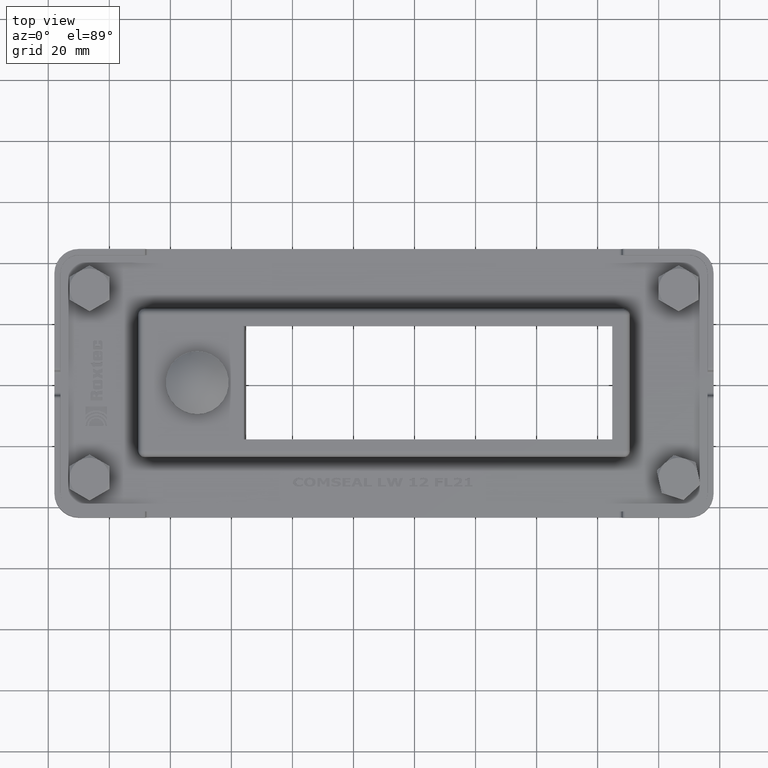
[diagram: clean part render]
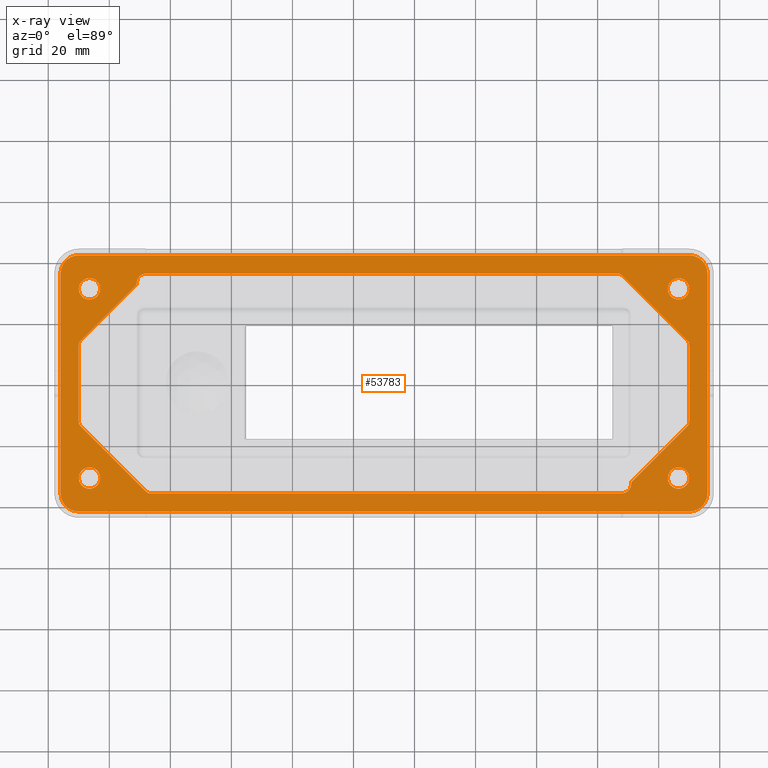
[diagram: x-ray — body ghosted, one internal face saturated and labeled with its STEP entity id]
A machine part, top view, then the same camera in x-ray: the body is ghosted and one INTERNAL B-rep face — a face not visible from any outside direction — is saturated and labeled: STEP entity #53783.
In plain terms, the highlighted planar face has unit normal (-0, -0, 1).
Its self-contained STEP definition (entity closure, byte-faithful):
#52681=CARTESIAN_POINT('',(76.236544032709489,35.292893218813134,4.0));
#52682=VERTEX_POINT('',#52681);
#52683=CARTESIAN_POINT('',(77.650757595082453,34.707106781186269,4.0));
#52684=VERTEX_POINT('',#52683);
#52685=CARTESIAN_POINT('',(76.236544032709489,33.292893218813298,4.0));
#52686=DIRECTION('',(0.0,0.0,-1.0));
#52687=DIRECTION('',(0.707106781186547,0.707106781186547,0.0));
#52688=AXIS2_PLACEMENT_3D('',#52685,#52686,#52687);
#52689=CIRCLE('',#52688,1.999999999999833);
#52690=EDGE_CURVE('',#52682,#52684,#52689,.T.);
#52723=CARTESIAN_POINT('',(99.121320343561052,13.236544032707691,4.0));
#52724=VERTEX_POINT('',#52723);
#52725=CARTESIAN_POINT('',(77.650757595082453,34.707106781186262,4.0));
#52726=DIRECTION('',(0.707106781186548,-0.707106781186547,0.0));
#52727=VECTOR('',#52726,30.363961030680976);
#52728=LINE('',#52725,#52727);
#52729=EDGE_CURVE('',#52684,#52724,#52728,.T.);
#52754=CARTESIAN_POINT('',(99.707106781186525,11.822330470338034,4.0));
#52755=VERTEX_POINT('',#52754);
#52756=CARTESIAN_POINT('',(97.707106781191385,11.822330470338034,4.0));
#52757=DIRECTION('',(0.0,0.0,-1.0));
#52758=DIRECTION('',(1.0,0.0,0.0));
#52759=AXIS2_PLACEMENT_3D('',#52756,#52757,#52758);
#52760=CIRCLE('',#52759,1.999999999995153);
#52761=EDGE_CURVE('',#52724,#52755,#52760,.T.);
#52787=CARTESIAN_POINT('',(99.707106781186567,-13.236544032709482,4.0));
#52788=VERTEX_POINT('',#52787);
#52789=CARTESIAN_POINT('',(99.707106781186511,11.822330470338034,4.0));
#52790=DIRECTION('',(0.0,-1.0,0.0));
#52791=VECTOR('',#52790,25.058874503047516);
#52792=LINE('',#52789,#52791);
#52793=EDGE_CURVE('',#52755,#52788,#52792,.T.);
#52818=CARTESIAN_POINT('',(99.121320343559717,-14.650757595082435,4.0));
#52819=VERTEX_POINT('',#52818);
#52820=CARTESIAN_POINT('',(97.707106781186724,-13.236544032709482,4.0));
#52821=DIRECTION('',(0.0,0.0,-1.0));
#52822=DIRECTION('',(0.70710678118656,-0.707106781186535,0.0));
#52823=AXIS2_PLACEMENT_3D('',#52820,#52821,#52822);
#52824=CIRCLE('',#52823,1.999999999999833);
#52825=EDGE_CURVE('',#52788,#52819,#52824,.T.);
#52851=CARTESIAN_POINT('',(81.000000000000014,-32.772077938642724,4.0));
#52852=VERTEX_POINT('',#52851);
#52853=CARTESIAN_POINT('',(99.121320343559731,-14.650757595082442,4.0));
#52854=DIRECTION('',(-0.707106781186536,-0.707106781186559,0.0));
#52855=VECTOR('',#52854,25.627416997970034);
#52856=LINE('',#52853,#52855);
#52857=EDGE_CURVE('',#52819,#52852,#52856,.T.);
#52882=CARTESIAN_POINT('',(80.707106781186582,-33.479184719829277,4.0));
#52883=VERTEX_POINT('',#52882);
#52884=CARTESIAN_POINT('',(81.707106781186582,-33.479184719829277,4.0));
#52885=DIRECTION('',(0.0,0.0,1.0));
#52886=DIRECTION('',(0.707106781186554,-0.707106781186541,0.0));
#52887=AXIS2_PLACEMENT_3D('',#52884,#52885,#52886);
#52888=CIRCLE('',#52887,1.0);
#52889=EDGE_CURVE('',#52852,#52883,#52888,.T.);
#52915=CARTESIAN_POINT('',(80.707106781186582,-33.607106781186879,4.0));
#52916=VERTEX_POINT('',#52915);
#52917=CARTESIAN_POINT('',(80.707106781186582,-33.479184719829277,4.0));
#52918=DIRECTION('',(0.0,-1.0,0.0));
#52919=VECTOR('',#52918,0.127922061357609);
#52920=LINE('',#52917,#52919);
#52921=EDGE_CURVE('',#52883,#52916,#52920,.T.);
#52946=CARTESIAN_POINT('',(77.607106781186573,-36.70710678118688,4.0));
#52947=VERTEX_POINT('',#52946);
#52948=CARTESIAN_POINT('',(77.607106781186573,-33.607106781186879,4.0));
#52949=DIRECTION('',(0.0,0.0,-1.0));
#52950=DIRECTION('',(0.0,-1.0,0.0));
#52951=AXIS2_PLACEMENT_3D('',#52948,#52949,#52950);
#52952=CIRCLE('',#52951,3.100000000000001);
#52953=EDGE_CURVE('',#52916,#52947,#52952,.T.);
#52979=CARTESIAN_POINT('',(-76.822330470336425,-36.707106781186923,4.0));
#52980=VERTEX_POINT('',#52979);
#52981=CARTESIAN_POINT('',(77.607106781186587,-36.70710678118688,4.0));
#52982=DIRECTION('',(-1.0,0.0,0.0));
#52983=VECTOR('',#52982,154.42943725152301);
#52984=LINE('',#52981,#52983);
#52985=EDGE_CURVE('',#52947,#52980,#52984,.T.);
#53010=CARTESIAN_POINT('',(-78.236544032709418,-36.121320343560065,4.0));
#53011=VERTEX_POINT('',#53010);
#53012=CARTESIAN_POINT('',(-76.822330470336425,-34.707106781187079,4.0));
#53013=DIRECTION('',(0.0,0.0,-1.0));
#53014=DIRECTION('',(-0.70710678118655,-0.707106781186545,0.0));
#53015=AXIS2_PLACEMENT_3D('',#53012,#53013,#53014);
#53016=CIRCLE('',#53015,1.999999999999833);
#53017=EDGE_CURVE('',#52980,#53011,#53016,.T.);
#53043=CARTESIAN_POINT('',(-99.70710678118661,-14.650757595082759,4.0));
#53044=VERTEX_POINT('',#53043);
#53045=CARTESIAN_POINT('',(-78.236544032709432,-36.121320343560072,4.0));
#53046=DIRECTION('',(-0.707106781186546,0.707106781186549,0.0));
#53047=VECTOR('',#53046,30.363961030679082);
#53048=LINE('',#53045,#53047);
#53049=EDGE_CURVE('',#53011,#53044,#53048,.T.);
#53074=CARTESIAN_POINT('',(-100.29289321881345,-13.236544032709785,4.0));
#53075=VERTEX_POINT('',#53074);
#53076=CARTESIAN_POINT('',(-98.292893218813617,-13.236544032709785,4.0));
#53077=DIRECTION('',(0.0,0.0,-1.0));
#53078=DIRECTION('',(-1.0,0.0,0.0));
#53079=AXIS2_PLACEMENT_3D('',#53076,#53077,#53078);
#53080=CIRCLE('',#53079,1.999999999999833);
#53081=EDGE_CURVE('',#53044,#53075,#53080,.T.);
#53107=CARTESIAN_POINT('',(-100.29289321881345,11.822330470335965,4.0));
#53108=VERTEX_POINT('',#53107);
#53109=CARTESIAN_POINT('',(-100.29289321881345,-13.236544032709785,4.0));
#53110=DIRECTION('',(0.0,1.0,0.0));
#53111=VECTOR('',#53110,25.05887450304575);
#53112=LINE('',#53109,#53111);
#53113=EDGE_CURVE('',#53075,#53108,#53112,.T.);
#53138=CARTESIAN_POINT('',(-99.707106781186582,13.236544032708931,4.0));
#53139=VERTEX_POINT('',#53138);
#53140=CARTESIAN_POINT('',(-98.292893218813617,11.822330470335965,4.0));
#53141=DIRECTION('',(0.0,0.0,-1.0));
#53142=DIRECTION('',(-0.707106781186548,0.707106781186547,0.0));
#53143=AXIS2_PLACEMENT_3D('',#53140,#53141,#53142);
#53144=CIRCLE('',#53143,1.999999999999833);
#53145=EDGE_CURVE('',#53108,#53139,#53144,.T.);
#53171=CARTESIAN_POINT('',(-81.585786437626894,31.357864376268729,4.0));
#53172=VERTEX_POINT('',#53171);
#53173=CARTESIAN_POINT('',(-99.707106781186582,13.236544032708924,4.0));
#53174=DIRECTION('',(0.707106781186545,0.70710678118655,0.0));
#53175=VECTOR('',#53174,25.627416997969668);
#53176=LINE('',#53173,#53175);
#53177=EDGE_CURVE('',#53139,#53172,#53176,.T.);
#53202=CARTESIAN_POINT('',(-81.292893218813447,32.064971157455268,4.0));
#53203=VERTEX_POINT('',#53202);
#53204=CARTESIAN_POINT('',(-82.292893218813447,32.064971157455268,4.0));
#53205=DIRECTION('',(0.0,0.0,1.0));
#53206=DIRECTION('',(-0.70710678118655,0.707106781186545,0.0));
#53207=AXIS2_PLACEMENT_3D('',#53204,#53205,#53206);
#53208=CIRCLE('',#53207,1.0);
#53209=EDGE_CURVE('',#53172,#53203,#53208,.T.);
#53235=CARTESIAN_POINT('',(-81.292893218813433,32.192893218813516,4.0));
#53236=VERTEX_POINT('',#53235);
#53237=CARTESIAN_POINT('',(-81.292893218813447,32.064971157455275,4.0));
#53238=DIRECTION('',(1.110899E-013,1.0,0.0));
#53239=VECTOR('',#53238,0.127922061358241);
#53240=LINE('',#53237,#53239);
#53241=EDGE_CURVE('',#53203,#53236,#53240,.T.);
#53266=CARTESIAN_POINT('',(-78.192893218813452,35.292893218813084,4.0));
#53267=VERTEX_POINT('',#53266);
#53268=CARTESIAN_POINT('',(-78.192893218813438,32.192893218813097,4.0));
#53269=DIRECTION('',(0.0,0.0,-1.0));
#53270=DIRECTION('',(0.0,1.0,0.0));
#53271=AXIS2_PLACEMENT_3D('',#53268,#53269,#53270);
#53272=CIRCLE('',#53271,3.099999999999992);
#53273=EDGE_CURVE('',#53236,#53267,#53272,.T.);
#53299=CARTESIAN_POINT('',(-78.192893218813452,35.292893218813077,4.0));
#53300=DIRECTION('',(1.0,0.0,0.0));
#53301=VECTOR('',#53300,154.42943725152293);
#53302=LINE('',#53299,#53301);
#53303=EDGE_CURVE('',#53267,#52682,#53302,.T.);
#53321=CARTESIAN_POINT('',(-93.292893218835331,-31.707106781186909,4.0));
#53322=VERTEX_POINT('',#53321);
#53323=CARTESIAN_POINT('',(-96.792893218835317,-31.707106781186909,4.0));
#53324=DIRECTION('',(0.0,0.0,-1.0));
#53325=DIRECTION('',(-1.0,0.0,0.0));
#53326=AXIS2_PLACEMENT_3D('',#53323,#53324,#53325);
#53327=CIRCLE('',#53326,3.5);
#53328=EDGE_CURVE('',#53322,#53322,#53327,.T.);
#53349=CARTESIAN_POINT('',(-93.292893218814271,30.292893218813095,4.0));
#53350=VERTEX_POINT('',#53349);
#53351=CARTESIAN_POINT('',(-96.792893218814271,30.292893218813095,4.0));
#53352=DIRECTION('',(0.0,0.0,-1.0));
#53353=DIRECTION('',(-1.0,0.0,0.0));
#53354=AXIS2_PLACEMENT_3D('',#53351,#53352,#53353);
#53355=CIRCLE('',#53354,3.5);
#53356=EDGE_CURVE('',#53350,#53350,#53355,.T.);
#53377=CARTESIAN_POINT('',(99.707106781186553,-31.707106781186884,4.0));
#53378=VERTEX_POINT('',#53377);
#53379=CARTESIAN_POINT('',(96.207106781186553,-31.707106781186884,4.0));
#53380=DIRECTION('',(0.0,0.0,-1.0));
#53381=DIRECTION('',(-1.0,0.0,0.0));
#53382=AXIS2_PLACEMENT_3D('',#53379,#53380,#53381);
#53383=CIRCLE('',#53382,3.5);
#53384=EDGE_CURVE('',#53378,#53378,#53383,.T.);
#53405=CARTESIAN_POINT('',(99.707106781186567,30.292893218813116,4.0));
#53406=VERTEX_POINT('',#53405);
#53407=CARTESIAN_POINT('',(96.207106781186567,30.292893218813116,4.0));
#53408=DIRECTION('',(0.0,0.0,-1.0));
#53409=DIRECTION('',(-1.0,0.0,0.0));
#53410=AXIS2_PLACEMENT_3D('',#53407,#53408,#53409);
#53411=CIRCLE('',#53410,3.5);
#53412=EDGE_CURVE('',#53406,#53406,#53411,.T.);
#53433=CARTESIAN_POINT('',(105.70710678118745,35.292893218815124,4.0));
#53434=VERTEX_POINT('',#53433);
#53435=CARTESIAN_POINT('',(105.70710678118658,-36.707106781186887,4.0));
#53436=VERTEX_POINT('',#53435);
#53437=CARTESIAN_POINT('',(105.70710678118745,35.292893218815117,4.0));
#53438=DIRECTION('',(0.0,-1.0,0.0));
#53439=VECTOR('',#53438,72.000000000002004);
#53440=LINE('',#53437,#53439);
#53441=EDGE_CURVE('',#53434,#53436,#53440,.T.);
#53473=CARTESIAN_POINT('',(99.70710678118661,-42.707106781186894,4.0));
#53474=VERTEX_POINT('',#53473);
#53475=CARTESIAN_POINT('',(99.70710678118661,-36.707106781186887,4.0));
#53476=DIRECTION('',(0.0,0.0,-1.0));
#53477=DIRECTION('',(0.0,-1.0,0.0));
#53478=AXIS2_PLACEMENT_3D('',#53475,#53476,#53477);
#53479=CIRCLE('',#53478,6.0);
#53480=EDGE_CURVE('',#53436,#53474,#53479,.T.);
#53506=CARTESIAN_POINT('',(-100.29289321881322,-42.707106781186909,4.0));
#53507=VERTEX_POINT('',#53506);
#53508=CARTESIAN_POINT('',(99.70710678118661,-42.707106781186894,4.0));
#53509=DIRECTION('',(-1.0,0.0,0.0));
#53510=VECTOR('',#53509,199.99999999999983);
#53511=LINE('',#53508,#53510);
#53512=EDGE_CURVE('',#53474,#53507,#53511,.T.);
#53537=CARTESIAN_POINT('',(-106.29289321881323,-36.707106781186909,4.0));
#53538=VERTEX_POINT('',#53537);
#53539=CARTESIAN_POINT('',(-100.29289321881322,-36.707106781186901,4.0));
#53540=DIRECTION('',(0.0,0.0,-1.0));
#53541=DIRECTION('',(-1.0,0.0,0.0));
#53542=AXIS2_PLACEMENT_3D('',#53539,#53540,#53541);
#53543=CIRCLE('',#53542,6.00000000000001);
#53544=EDGE_CURVE('',#53507,#53538,#53543,.T.);
#53570=CARTESIAN_POINT('',(-106.29289321881323,35.292893218813091,4.0));
#53571=VERTEX_POINT('',#53570);
#53572=CARTESIAN_POINT('',(-106.29289321881289,-36.707106781186909,4.0));
#53573=DIRECTION('',(0.0,1.0,0.0));
#53574=VECTOR('',#53573,72.0);
#53575=LINE('',#53572,#53574);
#53576=EDGE_CURVE('',#53538,#53571,#53575,.T.);
#53601=CARTESIAN_POINT('',(-100.2928932188133,41.292893218813091,4.0));
#53602=VERTEX_POINT('',#53601);
#53603=CARTESIAN_POINT('',(-100.29289321881323,35.292893218813099,4.0));
#53604=DIRECTION('',(0.0,0.0,-1.0));
#53605=DIRECTION('',(0.0,1.0,0.0));
#53606=AXIS2_PLACEMENT_3D('',#53603,#53604,#53605);
#53607=CIRCLE('',#53606,5.999999999999996);
#53608=EDGE_CURVE('',#53571,#53602,#53607,.T.);
#53634=CARTESIAN_POINT('',(99.707106781187363,41.292893218815195,4.0));
#53635=VERTEX_POINT('',#53634);
#53636=CARTESIAN_POINT('',(-100.29289321881332,41.292893218813091,4.0));
#53637=DIRECTION('',(1.0,0.0,0.0));
#53638=VECTOR('',#53637,200.00000000000068);
#53639=LINE('',#53636,#53638);
#53640=EDGE_CURVE('',#53602,#53635,#53639,.T.);
#53665=CARTESIAN_POINT('',(99.707106781187477,35.292893218815216,4.0));
#53666=DIRECTION('',(0.0,0.0,-1.0));
#53667=DIRECTION('',(1.0,0.0,0.0));
#53668=AXIS2_PLACEMENT_3D('',#53665,#53666,#53667);
#53669=CIRCLE('',#53668,5.999999999999979);
#53670=EDGE_CURVE('',#53635,#53434,#53669,.T.);
#53734=CARTESIAN_POINT('',(-0.292893218812715,-0.707106781186315,4.0));
#53735=DIRECTION('',(0.0,0.0,1.0));
#53736=DIRECTION('',(1.0,0.0,0.0));
#53737=AXIS2_PLACEMENT_3D('',#53734,#53735,#53736);
#53738=PLANE('',#53737);
#53739=ORIENTED_EDGE('',*,*,#53441,.F.);
#53740=ORIENTED_EDGE('',*,*,#53670,.F.);
#53741=ORIENTED_EDGE('',*,*,#53640,.F.);
#53742=ORIENTED_EDGE('',*,*,#53608,.F.);
#53743=ORIENTED_EDGE('',*,*,#53576,.F.);
#53744=ORIENTED_EDGE('',*,*,#53544,.F.);
#53745=ORIENTED_EDGE('',*,*,#53512,.F.);
#53746=ORIENTED_EDGE('',*,*,#53480,.F.);
#53747=EDGE_LOOP('',(#53739,#53740,#53741,#53742,#53743,#53744,#53745,#53746));
#53748=FACE_OUTER_BOUND('',#53747,.T.);
#53749=ORIENTED_EDGE('',*,*,#52690,.T.);
#53750=ORIENTED_EDGE('',*,*,#52729,.T.);
#53751=ORIENTED_EDGE('',*,*,#52761,.T.);
#53752=ORIENTED_EDGE('',*,*,#52793,.T.);
#53753=ORIENTED_EDGE('',*,*,#52825,.T.);
#53754=ORIENTED_EDGE('',*,*,#52857,.T.);
#53755=ORIENTED_EDGE('',*,*,#52889,.T.);
#53756=ORIENTED_EDGE('',*,*,#52921,.T.);
#53757=ORIENTED_EDGE('',*,*,#52953,.T.);
#53758=ORIENTED_EDGE('',*,*,#52985,.T.);
#53759=ORIENTED_EDGE('',*,*,#53017,.T.);
#53760=ORIENTED_EDGE('',*,*,#53049,.T.);
#53761=ORIENTED_EDGE('',*,*,#53081,.T.);
#53762=ORIENTED_EDGE('',*,*,#53113,.T.);
#53763=ORIENTED_EDGE('',*,*,#53145,.T.);
#53764=ORIENTED_EDGE('',*,*,#53177,.T.);
#53765=ORIENTED_EDGE('',*,*,#53209,.T.);
#53766=ORIENTED_EDGE('',*,*,#53241,.T.);
#53767=ORIENTED_EDGE('',*,*,#53273,.T.);
#53768=ORIENTED_EDGE('',*,*,#53303,.T.);
#53769=EDGE_LOOP('',(#53749,#53750,#53751,#53752,#53753,#53754,#53755,#53756,#53757,#53758,#53759,#53760,#53761,#53762,#53763,#53764,#53765,#53766,#53767,#53768));
#53770=FACE_BOUND('',#53769,.T.);
#53771=ORIENTED_EDGE('',*,*,#53328,.T.);
#53772=EDGE_LOOP('',(#53771));
#53773=FACE_BOUND('',#53772,.T.);
#53774=ORIENTED_EDGE('',*,*,#53356,.T.);
#53775=EDGE_LOOP('',(#53774));
#53776=FACE_BOUND('',#53775,.T.);
#53777=ORIENTED_EDGE('',*,*,#53384,.T.);
#53778=EDGE_LOOP('',(#53777));
#53779=FACE_BOUND('',#53778,.T.);
#53780=ORIENTED_EDGE('',*,*,#53412,.T.);
#53781=EDGE_LOOP('',(#53780));
#53782=FACE_BOUND('',#53781,.T.);
#53783=ADVANCED_FACE('',(#53748,#53770,#53773,#53776,#53779,#53782),#53738,.T.);